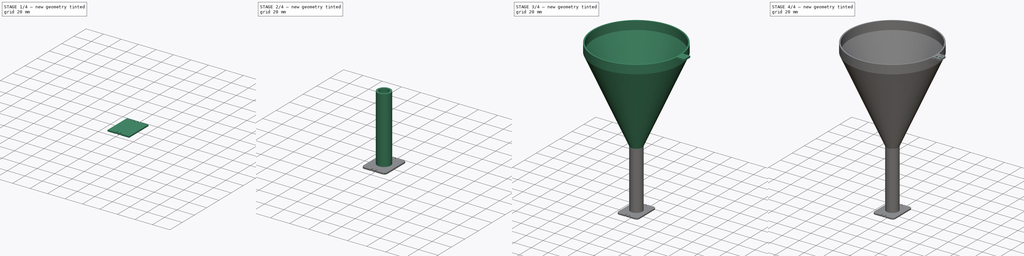
[diagram: build sequence overview — one tinted view per stage of 4, left to right]
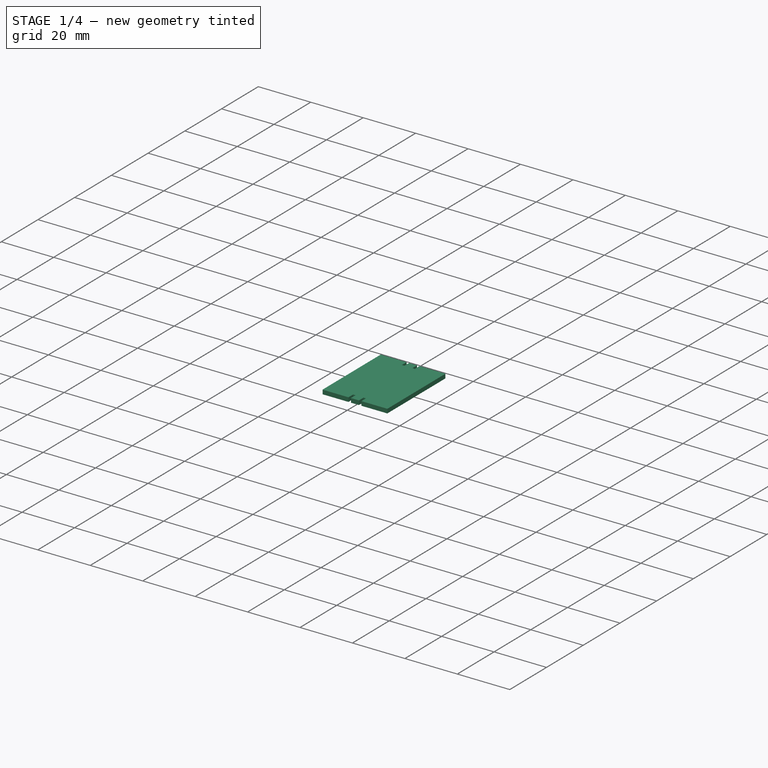
[diagram: stage 1 of 4 — iso view after this stage's code; geometry added in this stage tinted green]
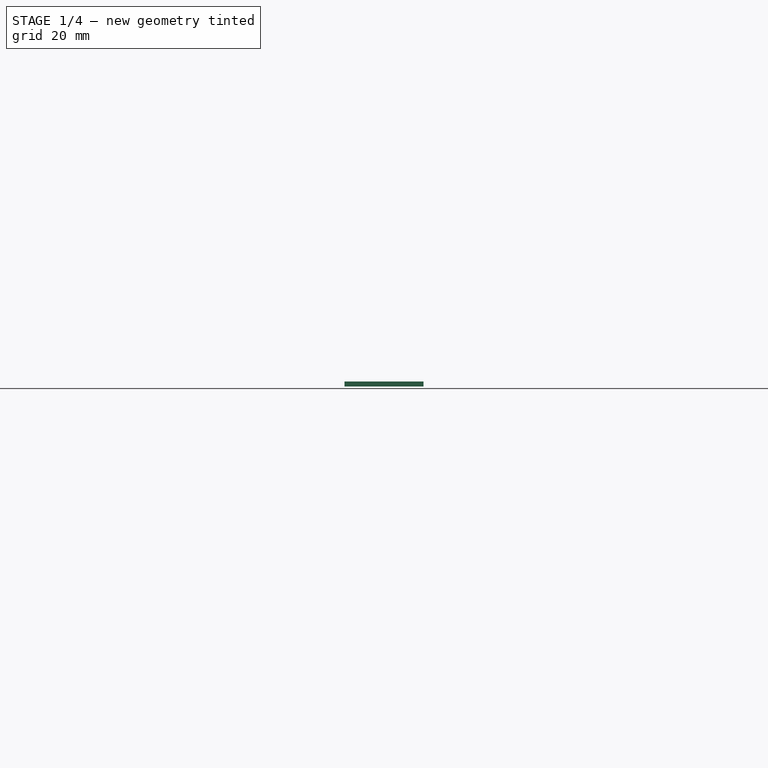
[diagram: stage 1 of 4 — front view after this stage's code; geometry added in this stage tinted green]
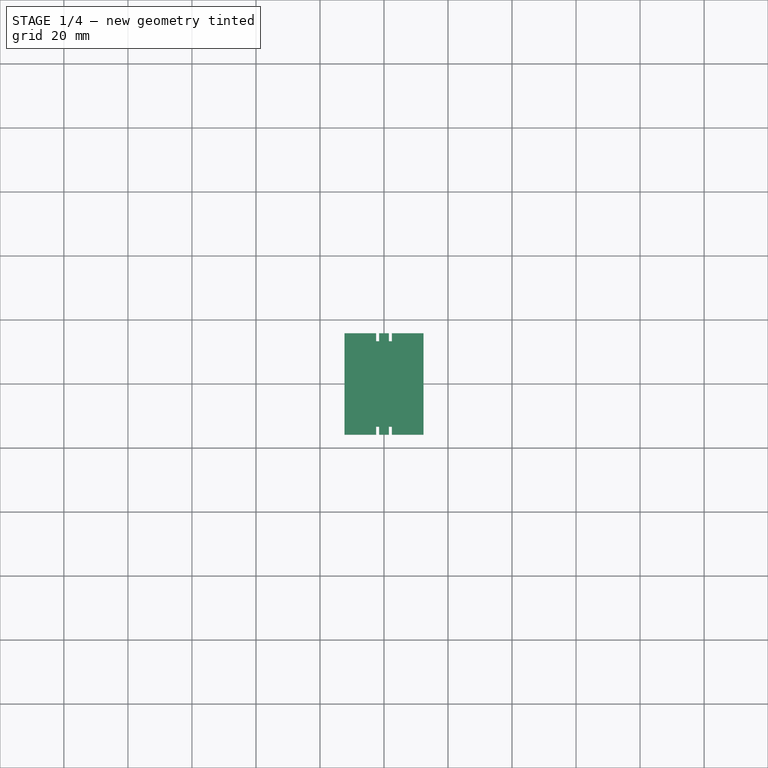
[diagram: stage 1 of 4 — top view after this stage's code; geometry added in this stage tinted green]
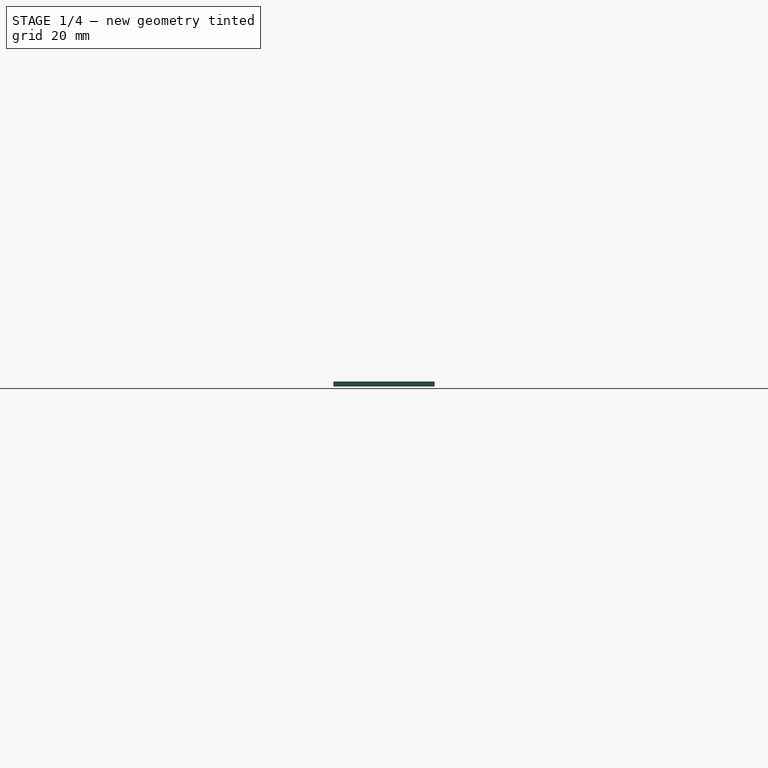
[diagram: stage 1 of 4 — right view after this stage's code; geometry added in this stage tinted green]
FCSTD DOCUMENT  (FreeCAD 0.20R29410 (Git))
Label: pcb
License: All rights reserved
LicenseURL: http://en.wikipedia.org/wiki/All_rights_reserved
objects: Sketcher::SketchObject×7, PartDesign::Pad×4, PartDesign::Pocket×2, PartDesign::Fillet×2, PartDesign::Body×2, App::Part×2, PartDesign::AdditiveLoft×1, Part::Part2DObjectPython×1
note: 28 computed .brp shape members not serialized (recipe doc carries the construction recipe); baked Part::Feature solids carry a one-line shape summary decoded from their .brp

FEATURE [Sketcher::SketchObject] Sketch003
  FullyConstrained = true
  MapMode = 5
  Support = -> [XY_Plane003]
  sketch-geometry (4):
    g0: LineSegment StartX=-12.35 StartY=15.825 StartZ=0 EndX=12.35 EndY=15.825 EndZ=0
    g1: LineSegment StartX=12.35 StartY=15.825 StartZ=0 EndX=12.35 EndY=-15.825 EndZ=0
    g2: LineSegment StartX=12.35 StartY=-15.825 StartZ=0 EndX=-12.35 EndY=-15.825 EndZ=0
    g3: LineSegment StartX=-12.35 StartY=-15.825 StartZ=0 EndX=-12.35 EndY=15.825 EndZ=0
  constraints (11):
    c: Coincident(g0,g1)
    c: Coincident(g1,g2)
    c: Coincident(g2,g3)
    c: Coincident(g3,g0)
    c: Horizontal(g0)
    c: Horizontal(g2)
    c: Vertical(g1)
    c: Vertical(g3)
    c: Symmetric(g1,g0,g-1)
    c: DistanceX(g2,g2) = 24.7
    c: DistanceY(g1,g1) = 31.65
FEATURE [PartDesign::Pad] Pad002
  Direction = (0,0,1)
  Length = 1.6
  Length2 = 10
  Profile = -> Sketch003
  ReferenceAxis = -> Sketch003 [N_Axis]
  Type = 0
FEATURE [Sketcher::SketchObject] Sketch004
  ExternalGeometry = -> [Pad002]
  FullyConstrained = true
  MapMode = 5
  Placement = pos=(0,0,1.6) rot=(0,0,1;0rad)
  Support = -> [Pad002]
  expr: Constraints[34] = .Constraints.Height
  expr: Constraints[45] = .Constraints.Height
  expr: Constraints[67] = .Constraints.Height
  sketch-geometry (24):
    g0: LineSegment StartX=-1.7 StartY=-15.825 StartZ=0 EndX=1.7 EndY=-15.825 EndZ=0
    g1: LineSegment StartX=1.7 StartY=-15.825 StartZ=0 EndX=1.7 EndY=-12.425 EndZ=0
    g2: LineSegment StartX=1.7 StartY=-12.425 StartZ=0 EndX=-1.7 EndY=-12.425 EndZ=0
    g3: LineSegment StartX=-1.7 StartY=-12.425 StartZ=0 EndX=-1.7 EndY=-15.825 EndZ=0
    g4: LineSegment StartX=2.275 StartY=-15.825 StartZ=0 EndX=5.675 EndY=-15.825 EndZ=0
    g5: LineSegment StartX=5.675 StartY=-15.825 StartZ=0 EndX=5.675 EndY=-12.425 EndZ=0
    g6: LineSegment StartX=5.675 StartY=-12.425 StartZ=0 EndX=2.275 EndY=-12.425 EndZ=0
    g7: LineSegment StartX=2.275 StartY=-12.425 StartZ=0 EndX=2.275 EndY=-15.825 EndZ=0
    g8: LineSegment StartX=1.525 StartY=-15.825 StartZ=0 EndX=2.475 EndY=-15.825 EndZ=0
    g9: LineSegment StartX=2.475 StartY=-15.825 StartZ=0 EndX=2.475 EndY=-13.325 EndZ=0
    g10: LineSegment StartX=2.475 StartY=-13.325 StartZ=0 EndX=1.525 EndY=-13.325 EndZ=0
    g11: LineSegment StartX=1.525 StartY=-13.325 StartZ=0 EndX=1.525 EndY=-15.825 EndZ=0
    g12: LineSegment StartX=-1.525 StartY=-15.825 StartZ=0 EndX=-2.475 EndY=-15.825 EndZ=0
    g13: LineSegment StartX=-2.475 StartY=-15.825 StartZ=0 EndX=-2.475 EndY=-13.325 EndZ=0
    g14: LineSegment StartX=-2.475 StartY=-13.325 StartZ=0 EndX=-1.525 EndY=-13.325 EndZ=0
    g15: LineSegment StartX=-1.525 StartY=-13.325 StartZ=0 EndX=-1.525 EndY=-15.825 EndZ=0
    g16: LineSegment StartX=2.475 StartY=15.825 StartZ=0 EndX=1.525 EndY=15.825 EndZ=0
    g17: LineSegment StartX=1.525 StartY=15.825 StartZ=0 EndX=1.525 EndY=13.325 EndZ=0
    g18: LineSegment StartX=1.525 StartY=13.325 StartZ=0 EndX=2.475 EndY=13.325 EndZ=0
    g19: LineSegment StartX=2.475 StartY=13.325 StartZ=0 EndX=2.475 EndY=15.825 EndZ=0
    g20: LineSegment StartX=-1.525 StartY=15.825 StartZ=0 EndX=-2.475 EndY=15.825 EndZ=0
    g21: LineSegment StartX=-2.475 StartY=15.825 StartZ=0 EndX=-2.475 EndY=13.325 EndZ=0
    g22: LineSegment StartX=-2.475 StartY=13.325 StartZ=0 EndX=-1.525 EndY=13.325 EndZ=0
    g23: LineSegment StartX=-1.525 StartY=13.325 StartZ=0 EndX=-1.525 EndY=15.825 EndZ=0
  constraints (71):
    c: Coincident(g0,g1)
    c: Coincident(g1,g2)
    c: Coincident(g2,g3)
    c: Coincident(g3,g0)
    c: Horizontal(g0)
    c: Vertical(g1)
    c: Vertical(g3)
    c: PointOnObject(g0,g-3)
    c: Symmetric(g1,g2,g-2)
    c: DistanceX(g2,g2) = 3.4
    c: DistanceY(g1,g1) = 3.4
    c: Coincident(g4,g5)
    c: Coincident(g5,g6)
    c: Coincident(g6,g7)
    c: Coincident(g7,g4)
    c: Horizontal(g4)
    c: Vertical(g5)
    c: Vertical(g7)
    c: DistanceX(g6,g6) = 3.4
    c: DistanceY(g5,g5) = 3.4
    c: PointOnObject(g4,g-3)
    c: Horizontal(g6)
    c: DistanceX(g1,g6) = 0.575
    c: Coincident(g8,g9)
    c: Coincident(g9,g10)
    c: Coincident(g10,g11)
    c: Coincident(g11,g8)
    c: Horizontal(g8)
    c: Horizontal(g10)
    c: Vertical(g9)
    c: Vertical(g11)
    c: PointOnObject(g8,g0)
    c: DistanceX(g-1,g10) = 1.525
    c: DistanceX(g10,g10) = 0.95
    c: DistanceY(g9,g9) = 2.5
    c: Coincident(g12,g13)
    c: Coincident(g13,g14)
    c: Coincident(g14,g15)
    c: Coincident(g15,g12)
    c: Horizontal(g12)
    c: Horizontal(g14)
    c: Vertical(g13)
    c: Vertical(g15)
    c: PointOnObject(g12,g0)
    c: DistanceX(g14,g14) = 0.95
    c: DistanceY(g15,g15) = 2.5
    c: DistanceX(g14,g-1) = 1.525
    c: Coincident(g16,g17)
    c: Coincident(g17,g18)
    c: Coincident(g18,g19)
    c: Coincident(g19,g16)
    c: Horizontal(g16)
    c: Horizontal(g18)
    c: Vertical(g17)
    c: Vertical(g19)
    c: PointOnObject(g16,g-6)
    c: Coincident(g20,g21)
    c: Coincident(g21,g22)
    c: Coincident(g22,g23)
    c: Coincident(g23,g20)
    c: Horizontal(g20)
    c: Horizontal(g22)
    c: Vertical(g21)
    c: Vertical(g23)
    c: PointOnObject(g20,g-6)
    c: DistanceX(g18,g18) = 0.95
    c: DistanceX(g22,g22) = 0.95
    c: DistanceY(g23,g23) = 2.5
    c: DistanceY(g17,g17) = 2.5  'Height'
    c: DistanceX(g-1,g17) = 1.525
    c: DistanceX(g22,g-1) = 1.525
FEATURE [PartDesign::Pocket] Pocket
  BaseFeature = -> Pad002
  Direction = (0,0,-1)
  Length = 5
  Length2 = 5
  Profile = -> Sketch004
  ReferenceAxis = -> Sketch004 [N_Axis]
  Type = 1
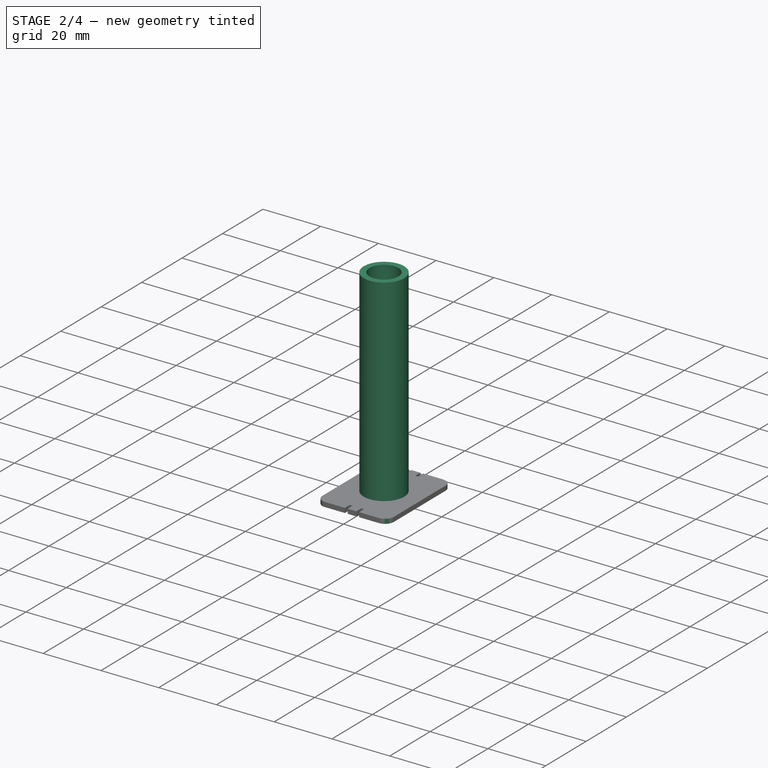
[diagram: stage 2 of 4 — iso view after this stage's code; geometry added in this stage tinted green]
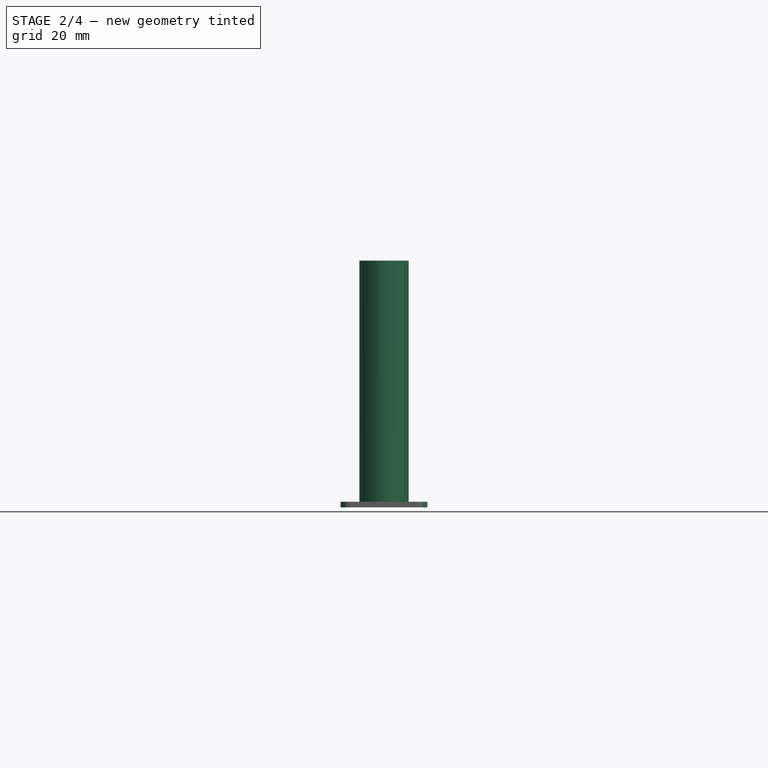
[diagram: stage 2 of 4 — front view after this stage's code; geometry added in this stage tinted green]
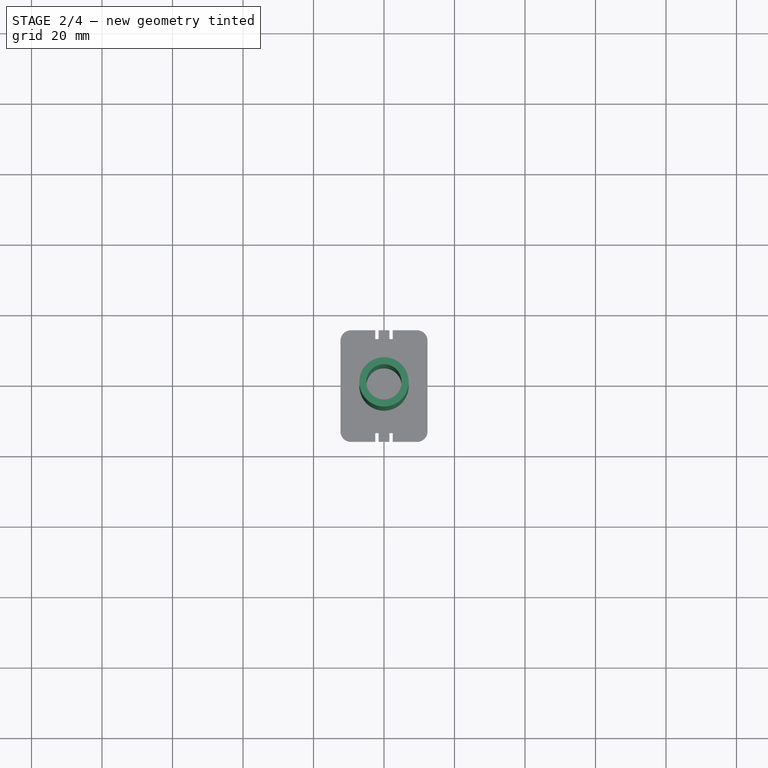
[diagram: stage 2 of 4 — top view after this stage's code; geometry added in this stage tinted green]
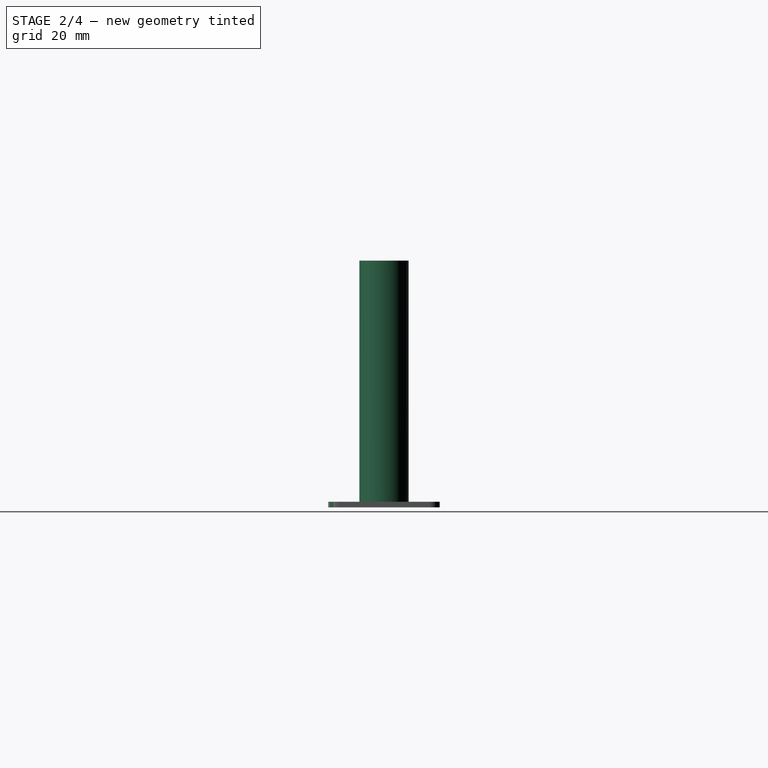
[diagram: stage 2 of 4 — right view after this stage's code; geometry added in this stage tinted green]
FEATURE [Sketcher::SketchObject] Sketch
  FullyConstrained = true
  MapMode = 5
  Support = -> [XY_Plane001]
  sketch-geometry (2):
    g0: Circle CenterX=0 CenterY=0 CenterZ=0 NormalX=0 NormalY=0 NormalZ=1 AngleXU=0 Radius=5
    g1: Circle CenterX=0 CenterY=0 CenterZ=0 NormalX=0 NormalY=0 NormalZ=1 AngleXU=0 Radius=7
  constraints (4):
    c: Coincident(g0,g-1)
    c: Diameter(g0) = 10
    c: Coincident(g1,g0)
    c: Diameter(g1) = 14
FEATURE [PartDesign::Pad] Pad
  Direction = (0,0,1)
  Length = 70
  Length2 = 10
  Profile = -> Sketch
  ReferenceAxis = -> Sketch [N_Axis]
  Type = 0
FEATURE [PartDesign::Fillet] Fillet
  Base = -> Pocket [Edge4,Edge51,Edge44,Edge52]
  BaseFeature = -> Pocket
  Radius = 3
  SupportTransform = false
  UseAllEdges = false
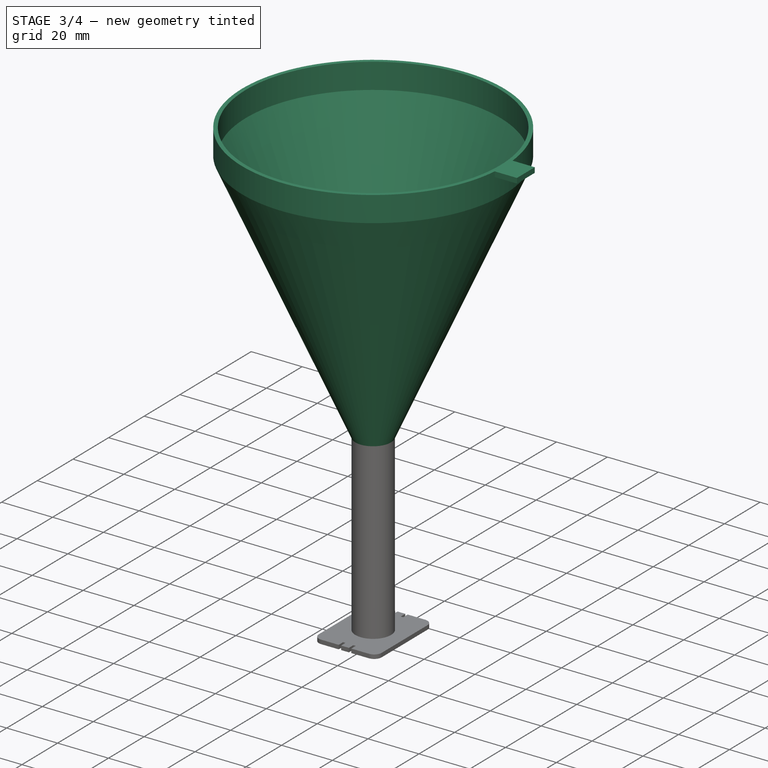
[diagram: stage 3 of 4 — iso view after this stage's code; geometry added in this stage tinted green]
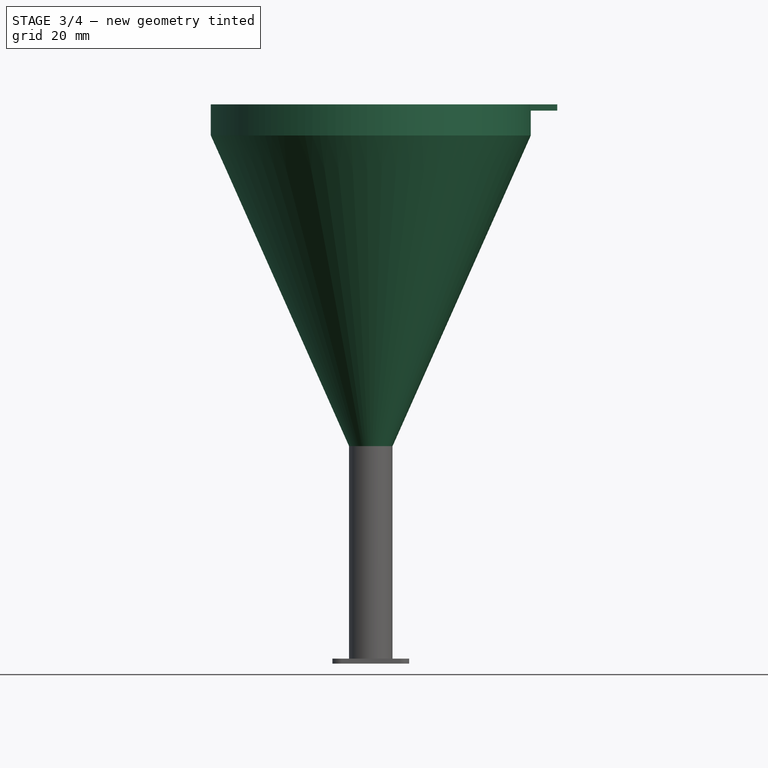
[diagram: stage 3 of 4 — front view after this stage's code; geometry added in this stage tinted green]
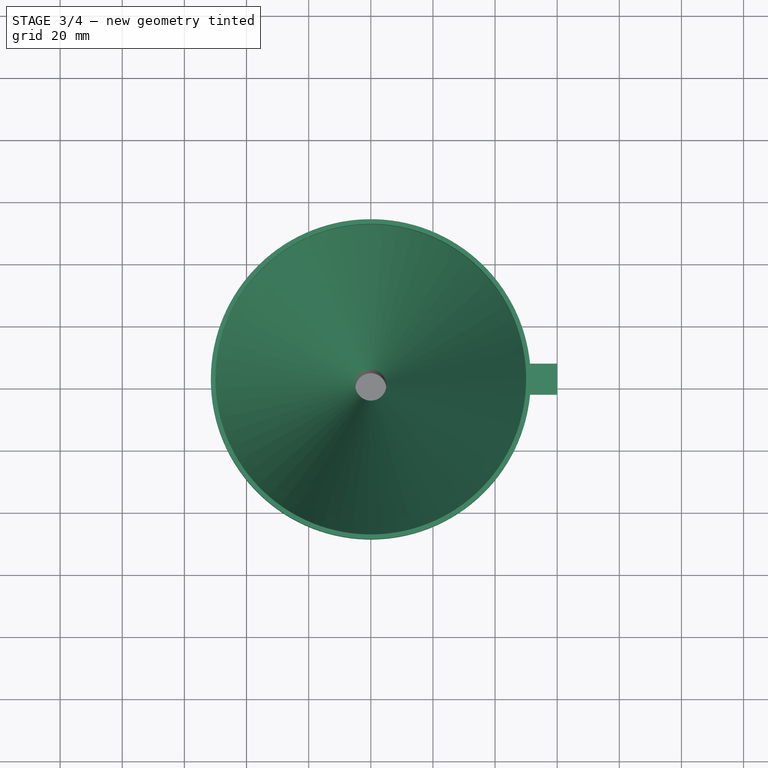
[diagram: stage 3 of 4 — top view after this stage's code; geometry added in this stage tinted green]
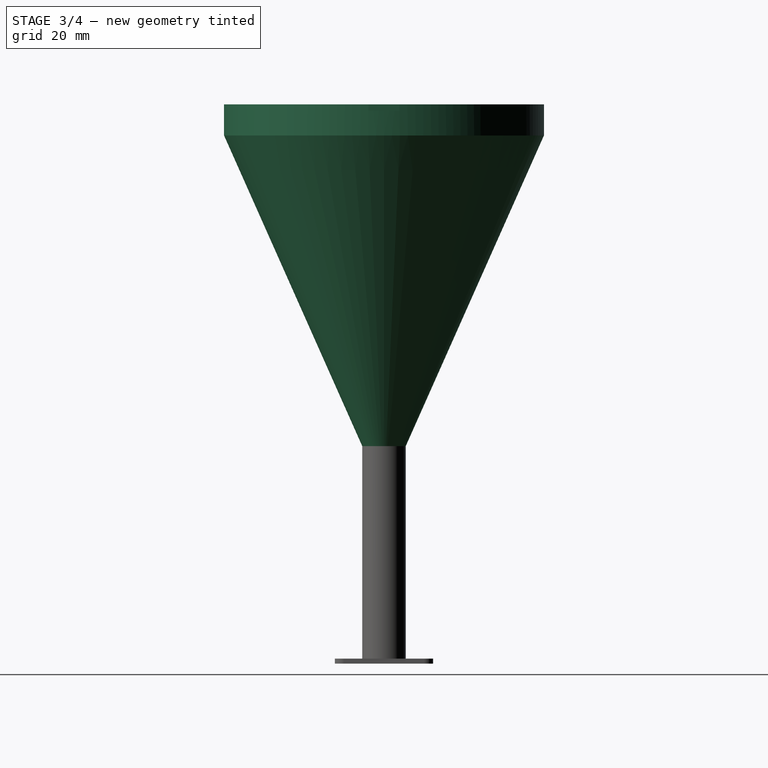
[diagram: stage 3 of 4 — right view after this stage's code; geometry added in this stage tinted green]
FEATURE [Sketcher::SketchObject] Sketch001
  ExternalGeometry = -> [Pad]
  FullyConstrained = true
  MapMode = 5
  Placement = pos=(0,0,70) rot=(0,0,1;0rad)
  Support = -> [Pad]
  sketch-geometry (2):
    g0: Circle CenterX=0 CenterY=0 CenterZ=0 NormalX=0 NormalY=0 NormalZ=1 AngleXU=0 Radius=5
    g1: Circle CenterX=0 CenterY=0 CenterZ=0 NormalX=0 NormalY=0 NormalZ=1 AngleXU=0 Radius=7
  constraints (5):
    c: Coincident(g0,g-4)
    c: Coincident(g1,g0)
    c: Diameter(g1) = 14
    c: Diameter(g-3) = 10
    c: Diameter(g0) = 10
FEATURE [Sketcher::SketchObject] Sketch002
  AttachmentOffset = pos=(0,0,100) rot=(0,0,1;0rad)
  FullyConstrained = true
  MapMode = 5
  Placement = pos=(0,0,170) rot=(0,0,1;0rad)
  Support = -> [Pad]
  sketch-geometry (2):
    g0: Circle CenterX=0 CenterY=0 CenterZ=0 NormalX=0 NormalY=0 NormalZ=1 AngleXU=0 Radius=50
    g1: Circle CenterX=0 CenterY=0 CenterZ=0 NormalX=0 NormalY=0 NormalZ=1 AngleXU=0 Radius=51.5
  constraints (4):
    c: Coincident(g0,g-1)
    c: Coincident(g1,g0)
    c: Diameter(g0) = 100
    c: Diameter(g1) = 103
FEATURE [PartDesign::AdditiveLoft] AdditiveLoft
  BaseFeature = -> Pad
  Closed = false
  Profile = -> Sketch001
  Ruled = false
  Sections = -> [Sketch002]
FEATURE [PartDesign::Pad] Pad001
  BaseFeature = -> AdditiveLoft
  Direction = (0,0,1)
  Length = 10
  Length2 = 10
  Profile = -> AdditiveLoft [Face5]
  Type = 0
FEATURE [PartDesign::Body] Body001
  Group = -> [Sketch003,Pad002,Sketch004,Pocket,Fillet]
  Origin = -> Origin003
  Tip = -> Fillet
FEATURE [App::Part] Part001
  Group = -> [Body001]
  Origin = -> Origin002
FEATURE [Sketcher::SketchObject] Sketch005
  ExternalGeometry = -> [Pad001]
  FullyConstrained = true
  MapMode = 5
  Placement = pos=(0,0,180) rot=(0,0,1;0rad)
  Support = -> [Pad001]
  sketch-geometry (4):
    g0: LineSegment StartX=50 StartY=5 StartZ=0 EndX=60 EndY=5 EndZ=0
    g1: LineSegment StartX=60 StartY=5 StartZ=0 EndX=60 EndY=-5 EndZ=0
    g2: LineSegment StartX=60 StartY=-5 StartZ=0 EndX=50 EndY=-5 EndZ=0
    g3: LineSegment StartX=50 StartY=-5 StartZ=0 EndX=50 EndY=5 EndZ=0
  constraints (11):
    c: Coincident(g0,g1)
    c: Coincident(g1,g2)
    c: Coincident(g2,g3)
    c: Coincident(g3,g0)
    c: Horizontal(g0)
    c: Horizontal(g2)
    c: Vertical(g3)
    c: Symmetric(g1,g0,g-1)
    c: DistanceX(g-4,g2) = 50
    c: DistanceY(g1,g1) = 10
    c: DistanceX(g2,g2) = 10
FEATURE [PartDesign::Pad] Pad003
  BaseFeature = -> Pad001
  Direction = (0,0,1)
  Length = 2
  Length2 = 10
  Profile = -> Sketch005
  ReferenceAxis = -> Sketch005 [N_Axis]
  Reversed = true
  Type = 0
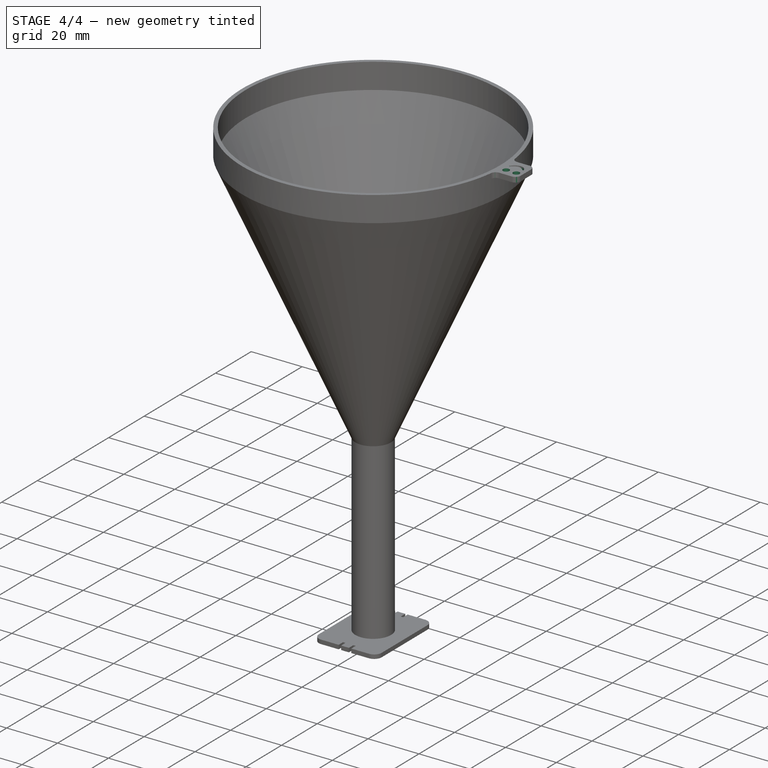
[diagram: stage 4 of 4 — iso view after this stage's code; geometry added in this stage tinted green]
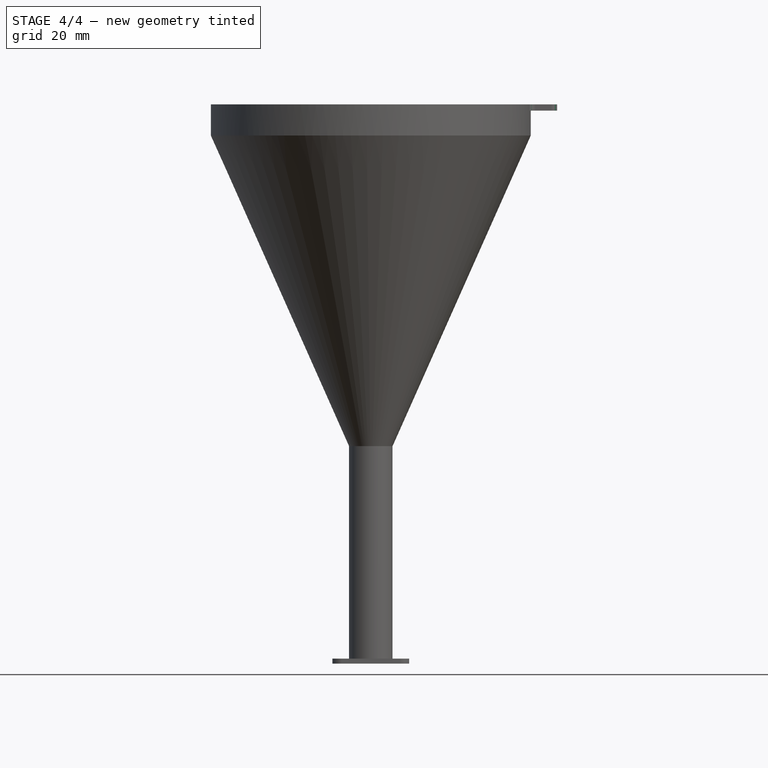
[diagram: stage 4 of 4 — front view after this stage's code; geometry added in this stage tinted green]
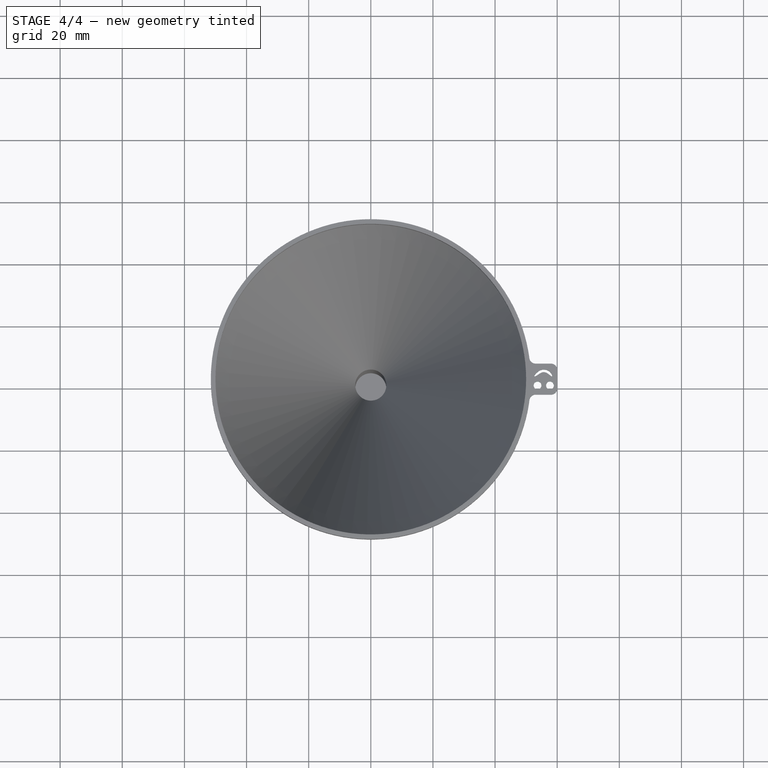
[diagram: stage 4 of 4 — top view after this stage's code; geometry added in this stage tinted green]
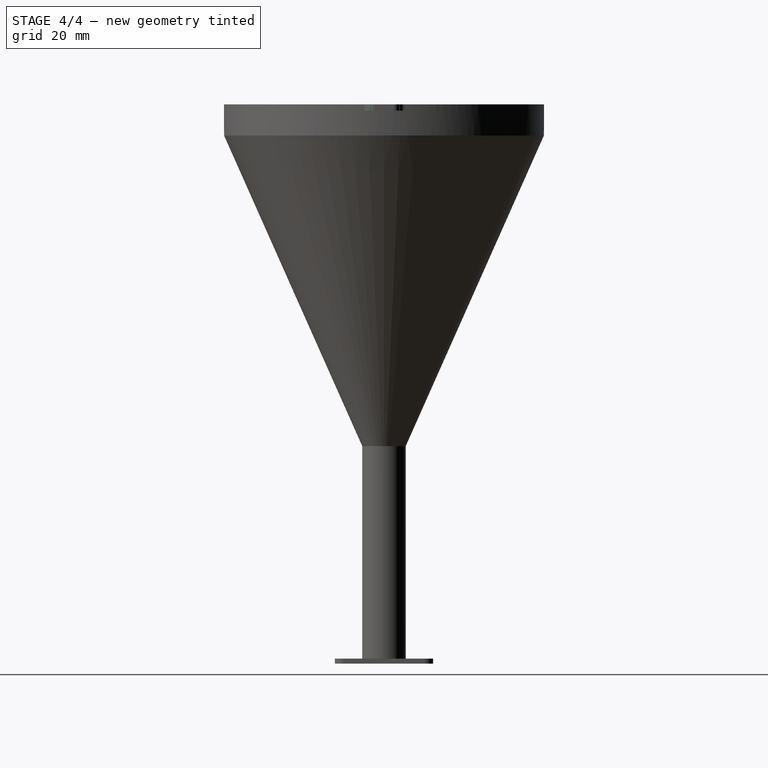
[diagram: stage 4 of 4 — right view after this stage's code; geometry added in this stage tinted green]
FEATURE [Sketcher::SketchObject] Sketch006
  FullyConstrained = false
  MapMode = 5
  Placement = pos=(0,0,178) rot=(1,0,0;3.14159rad)
  Support = -> [Pad003]
  sketch-geometry (15):
    g0: Circle CenterX=53.6749 CenterY=2.03233 CenterZ=0 NormalX=0 NormalY=0 NormalZ=1 AngleXU=0 Radius=1.25
    g1: Circle CenterX=57.6749 CenterY=2.03233 CenterZ=0 NormalX=0 NormalY=0 NormalZ=1 AngleXU=0 Radius=1.25
    g2-g8: Circle x7 (B-spline internal-alignment scaffolding for g9; pole/knot coordinates omitted)
    g9: BSplineCurve PolesCount=7 KnotsCount=5 Degree=3 IsPeriodic=0
    g10-g14: GeomPoint x5 (B-spline internal-alignment scaffolding for g9; pole/knot coordinates omitted)
  constraints (11):
    c: Horizontal(g0,g1)
    c: DistanceX(g0,g1) = 4
    c: Diameter(g1) = 2.5
    c: Diameter(g0) = 2.5
    c: Weight(g2) = 1
    c: Equal(g2, g3-g7) x5
    c: PointOnObject(g7,g2)
    c: Equal(g2,g8)
    c: Coincident(g9,g2)
    c: InternalAlignment(g2-g8 -> g9) x7
    c: InternalAlignment(g10-g14 -> g9) x5
FEATURE [PartDesign::Pocket] Pocket001
  BaseFeature = -> Pad003
  Direction = (0,0,1)
  Length = 5
  Length2 = 5
  Profile = -> Sketch006
  ReferenceAxis = -> Sketch006 [N_Axis]
  Type = 1
FEATURE [PartDesign::Fillet] Fillet001
  Base = -> Pocket001 [Edge24,Edge31,Edge13,Edge11]
  BaseFeature = -> Pocket001
  Radius = 2
  SupportTransform = false
  UseAllEdges = false
FEATURE [PartDesign::Body] Body
  Group = -> [Sketch,Pad,Sketch001,Sketch002,AdditiveLoft,Pad001,Sketch005,Pad003,Sketch006,Pocket001,Fillet001]
  Origin = -> Origin001
  Tip = -> Fillet001
FEATURE [App::Part] Part
  Group = -> [Body]
  Origin = -> Origin
FEATURE [Part::Part2DObjectPython] Shape2DView  # Draft 2D object (typed FeaturePython)
  AutoUpdate = true
  Base = -> Fillet
  Clip = false
  FaceNumbers = [4]
  FuseArch = false
  HiddenLines = false
  InPlace = true
  OnlySolids = false
  Projection = (0,0,1)
  ProjectionMode = 0
  SegmentLength = 0.05
  Tessellation = false
  VisibleOnly = false
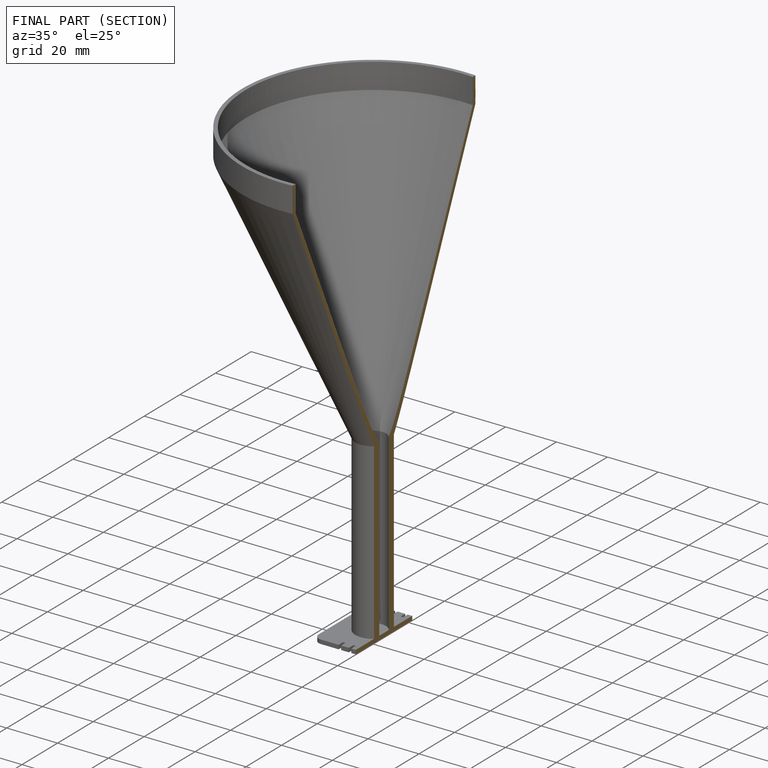
[diagram: finished part — half-section view (interior)]
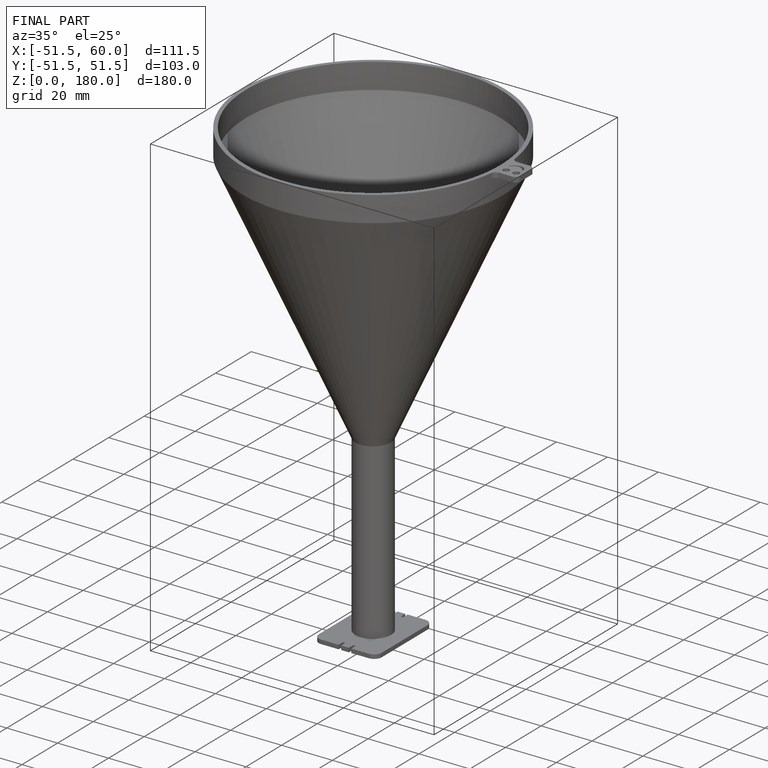
[diagram: finished part — iso view with bounding-box wireframe]
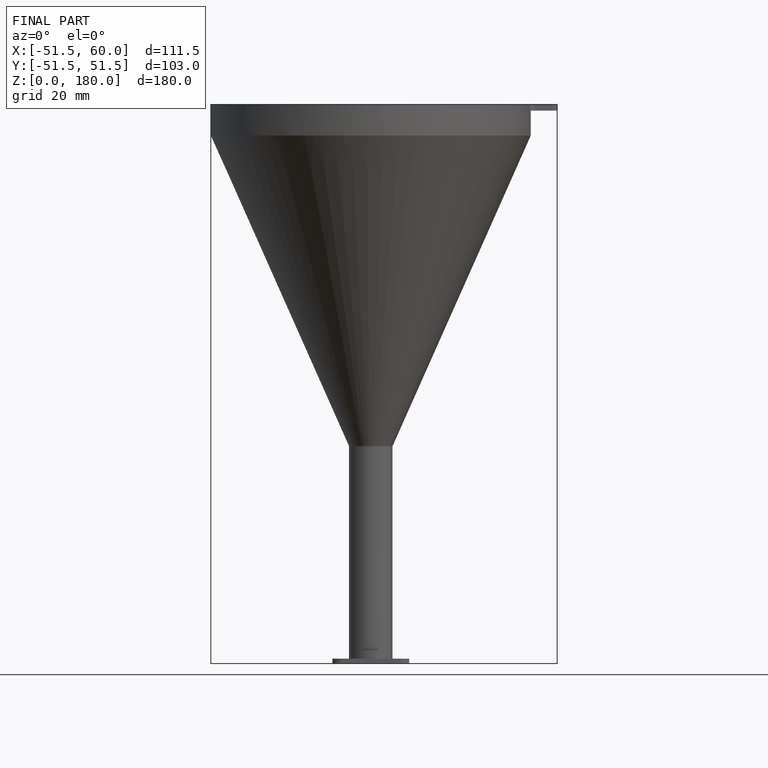
[diagram: finished part — front view with bounding-box wireframe]
